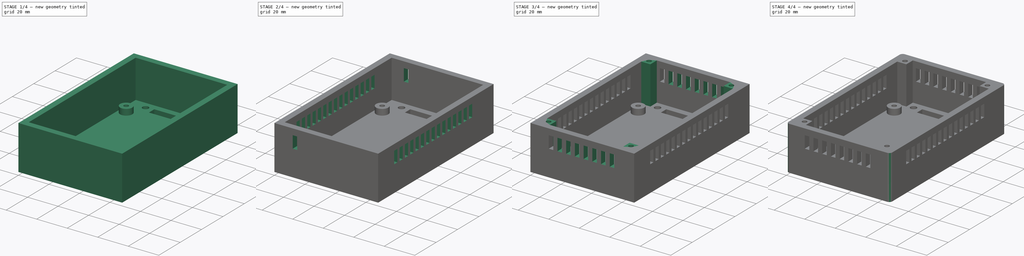
[diagram: build sequence overview — one tinted view per stage of 4, left to right]
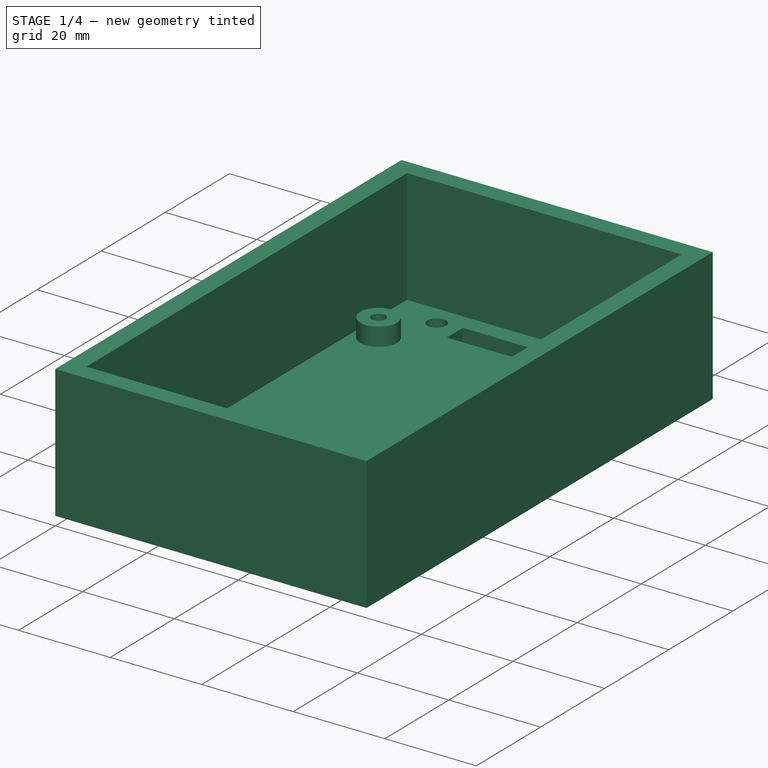
[diagram: stage 1 of 4 — iso view after this stage's code; geometry added in this stage tinted green]
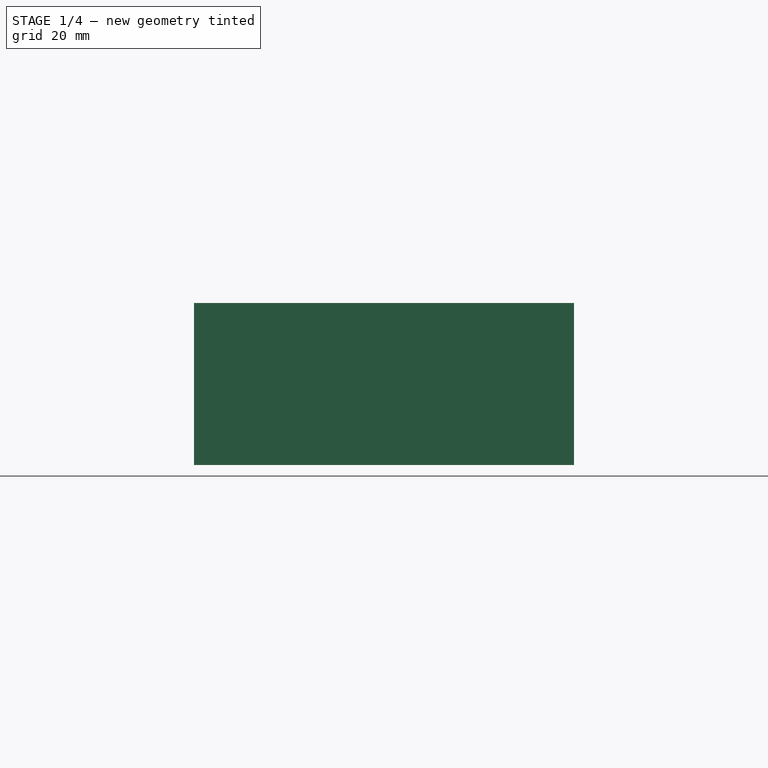
[diagram: stage 1 of 4 — front view after this stage's code; geometry added in this stage tinted green]
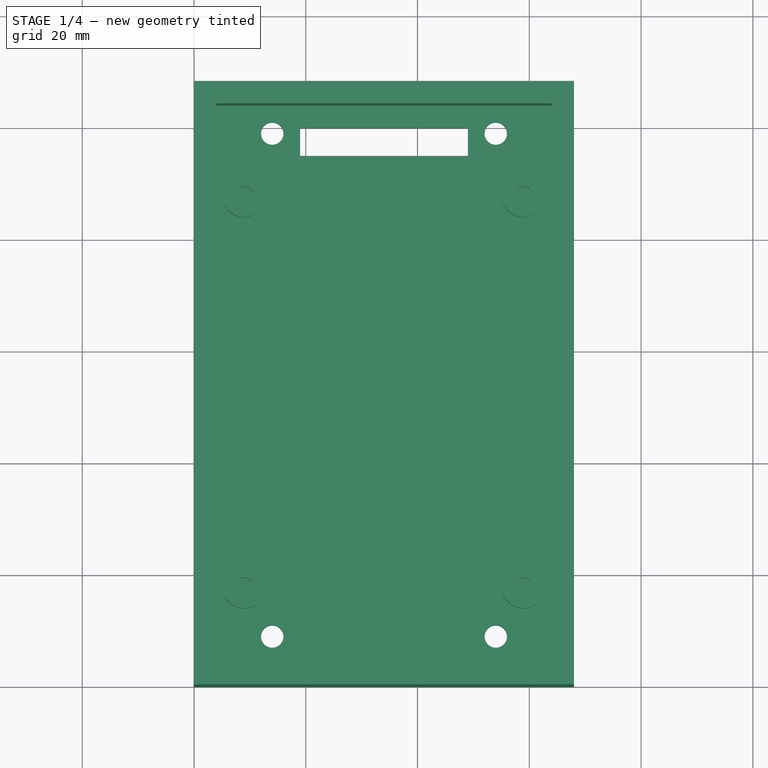
[diagram: stage 1 of 4 — top view after this stage's code; geometry added in this stage tinted green]
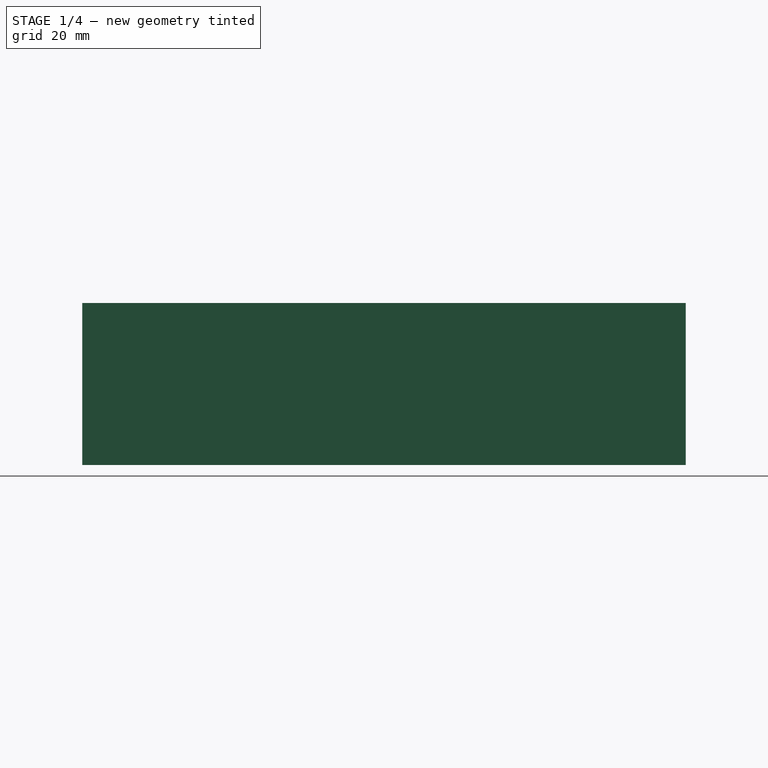
[diagram: stage 1 of 4 — right view after this stage's code; geometry added in this stage tinted green]
FCSTD DOCUMENT  (FreeCAD 0.16R6706 (Git))
Label: iROB-EA_Modulo_Meteorologia
License: All rights reserved
LicenseURL: http://en.wikipedia.org/wiki/All_rights_reserved
objects: Sketcher::SketchObject×8, PartDesign::Pad×4, PartDesign::Pocket×4, PartDesign::Fillet×4, PartDesign::LinearPattern×2
note: 30 computed .brp shape members not serialized (recipe doc carries the construction recipe); baked Part::Feature solids carry a one-line shape summary decoded from their .brp

FEATURE [Sketcher::SketchObject] Sketch  label="Base"
  sketch-geometry (4):
    g0: LineSegment StartX=0 StartY=108 StartZ=0 EndX=68 EndY=108 EndZ=0
    g1: LineSegment StartX=68 StartY=108 StartZ=0 EndX=68 EndY=0 EndZ=0
    g2: LineSegment StartX=68 StartY=0 StartZ=0 EndX=0 EndY=0 EndZ=0
    g3: LineSegment StartX=0 StartY=0 StartZ=0 EndX=0 EndY=108 EndZ=0
  constraints (11):
    c: Coincident(g0,g1)
    c: Coincident(g1,g2)
    c: Coincident(g2,g3)
    c: Coincident(g3,g0)
    c: Horizontal(g0)
    c: Horizontal(g2)
    c: Vertical(g1)
    c: Vertical(g3)
    c: DistanceY(g3,g3) = 108
    c: DistanceX(g2,g2) = 68
    c: Coincident(g2,g-1)
FEATURE [PartDesign::Pad] Pad
  Length = 4
  Length2 = 100
  Sketch = -> Sketch
  Type = 0
FEATURE [Sketcher::SketchObject] Sketch001  label="Borde_Caja"
  Placement = pos=(0,0,4) rot=(0,0,1;0rad)
  Support = -> Pad [Face6]
  sketch-geometry (8):
    g0: LineSegment StartX=4 StartY=104 StartZ=0 EndX=64 EndY=104 EndZ=0
    g1: LineSegment StartX=64 StartY=104 StartZ=0 EndX=64 EndY=4 EndZ=0
    g2: LineSegment StartX=64 StartY=4 StartZ=0 EndX=4 EndY=4 EndZ=0
    g3: LineSegment StartX=4 StartY=4 StartZ=0 EndX=4 EndY=104 EndZ=0
    g4: LineSegment StartX=0 StartY=108 StartZ=0 EndX=68 EndY=108 EndZ=0
    g5: LineSegment StartX=68 StartY=108 StartZ=0 EndX=68 EndY=0 EndZ=0
    g6: LineSegment StartX=68 StartY=0 StartZ=0 EndX=0 EndY=0 EndZ=0
    g7: LineSegment StartX=0 StartY=0 StartZ=0 EndX=0 EndY=108 EndZ=0
  constraints (23):
    c: Coincident(g0,g1)
    c: Coincident(g1,g2)
    c: Coincident(g2,g3)
    c: Coincident(g3,g0)
    c: Horizontal(g0)
    c: Horizontal(g2)
    c: Vertical(g1)
    c: Vertical(g3)
    c: DistanceX(g2,g2) = 60
    c: Coincident(g4,g5)
    c: Coincident(g5,g6)
    c: Coincident(g6,g7)
    c: Coincident(g7,g4)
    c: Horizontal(g4)
    c: Horizontal(g6)
    c: Vertical(g5)
    c: Vertical(g7)
    c: DistanceX(g6,g6) = 68
    c: DistanceX(g2,g6) = -4
    c: DistanceY(g6,g2) = 4
    c: DistanceY(g3,g3) = 100
    c: DistanceY(g7,g7) = 108
    c: Coincident(g6,g-1)
FEATURE [PartDesign::Pad] Pad001
  Length = 25
  Length2 = 100
  Sketch = -> Sketch001
  Type = 0
FEATURE [Sketcher::SketchObject] Sketch002  label="Ranura_Cable_Tornillos"
  Placement = pos=(0,0,4) rot=(0,0,1;0rad)
  Support = -> Pad001 [Face6]
  sketch-geometry (8):
    g0: LineSegment StartX=19 StartY=100 StartZ=0 EndX=49 EndY=100 EndZ=0
    g1: LineSegment StartX=49 StartY=100 StartZ=0 EndX=49 EndY=95 EndZ=0
    g2: LineSegment StartX=49 StartY=95 StartZ=0 EndX=19 EndY=95 EndZ=0
    g3: LineSegment StartX=19 StartY=95 StartZ=0 EndX=19 EndY=100 EndZ=0
    g4: Circle CenterX=14 CenterY=9 CenterZ=0 NormalX=0 NormalY=0 NormalZ=1 Radius=2
    g5: Circle CenterX=54 CenterY=9 CenterZ=0 NormalX=0 NormalY=0 NormalZ=1 Radius=2
    g6: Circle CenterX=54 CenterY=99 CenterZ=0 NormalX=0 NormalY=0 NormalZ=1 Radius=2
    g7: Circle CenterX=14 CenterY=99 CenterZ=0 NormalX=0 NormalY=0 NormalZ=1 Radius=2
  constraints (24):
    c: Coincident(g0,g1)
    c: Coincident(g1,g2)
    c: Coincident(g2,g3)
    c: Coincident(g3,g0)
    c: Horizontal(g0)
    c: Horizontal(g2)
    c: Vertical(g1)
    c: Vertical(g3)
    c: DistanceX(g0,g0) = 30
    c: DistanceY(g1,g1) = 5
    c: DistanceX(g2,g-1) = -19
    c: DistanceY(g-1,g2) = 95
    c: Radius(g4) = 2
    c: Radius(g5) = 2
    c: DistanceY(g4,g5) = 0
    c: DistanceX(g4,g5) = 40
    c: DistanceX(g4,g-1) = -14
    c: DistanceY(g-1,g4) = 9
    c: Radius(g6) = 2
    c: Radius(g7) = 2
    c: DistanceY(g6,g7) = 0
    c: DistanceX(g7,g6) = 40
    c: DistanceY(g5,g6) = 90
    c: DistanceX(g5,g6) = 0
FEATURE [PartDesign::Pocket] Pocket
  Length = 4
  Sketch = -> Sketch002
  Type = 0
FEATURE [Sketcher::SketchObject] Sketch003  label="Soportes_Circuito"
  Placement = pos=(0,0,4) rot=(0,0,1;0rad)
  Support = -> Pocket [Face11]
  sketch-geometry (8):
    g0: Circle CenterX=9 CenterY=88 CenterZ=0 NormalX=0 NormalY=0 NormalZ=1 Radius=1.5
    g1: Circle CenterX=9 CenterY=88 CenterZ=0 NormalX=0 NormalY=0 NormalZ=1 Radius=4
    g2: Circle CenterX=59 CenterY=88 CenterZ=0 NormalX=0 NormalY=0 NormalZ=1 Radius=1.5
    g3: Circle CenterX=59 CenterY=88 CenterZ=0 NormalX=0 NormalY=0 NormalZ=1 Radius=4
    g4: Circle CenterX=59 CenterY=18 CenterZ=0 NormalX=0 NormalY=0 NormalZ=1 Radius=1.5
    g5: Circle CenterX=59 CenterY=18 CenterZ=0 NormalX=0 NormalY=0 NormalZ=1 Radius=4
    g6: Circle CenterX=9 CenterY=18 CenterZ=0 NormalX=0 NormalY=0 NormalZ=1 Radius=1.5
    g7: Circle CenterX=9 CenterY=18 CenterZ=0 NormalX=0 NormalY=0 NormalZ=1 Radius=4
  constraints (20):
    c: Radius(g0) = 1.5
    c: Radius(g1) = 4
    c: Coincident(g0,g1)
    c: Radius(g2) = 1.5
    c: Radius(g3) = 4
    c: Coincident(g2,g3)
    c: DistanceY(g2,g0) = 0
    c: DistanceX(g0,g2) = 50
    c: Radius(g4) = 1.5
    c: Radius(g5) = 4
    c: Coincident(g4,g5)
    c: Radius(g6) = 1.5
    c: Radius(g7) = 4
    c: Coincident(g7,g6)
    c: DistanceY(g6,g4) = 0
    c: DistanceX(g0,g6) = 0
    c: DistanceX(g4,g2) = 0
    c: DistanceY(g6,g0) = 70
    c: DistanceX(g6,g-1) = -9
    c: DistanceY(g-1,g6) = 18
FEATURE [PartDesign::Pad] Pad002
  Length = 4
  Length2 = 100
  Sketch = -> Sketch003
  Type = 0
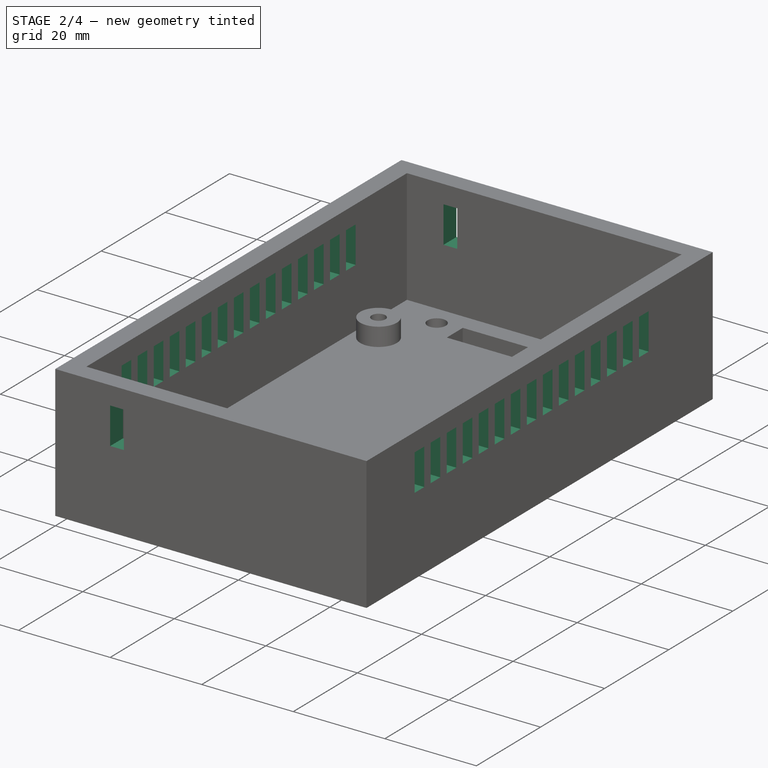
[diagram: stage 2 of 4 — iso view after this stage's code; geometry added in this stage tinted green]
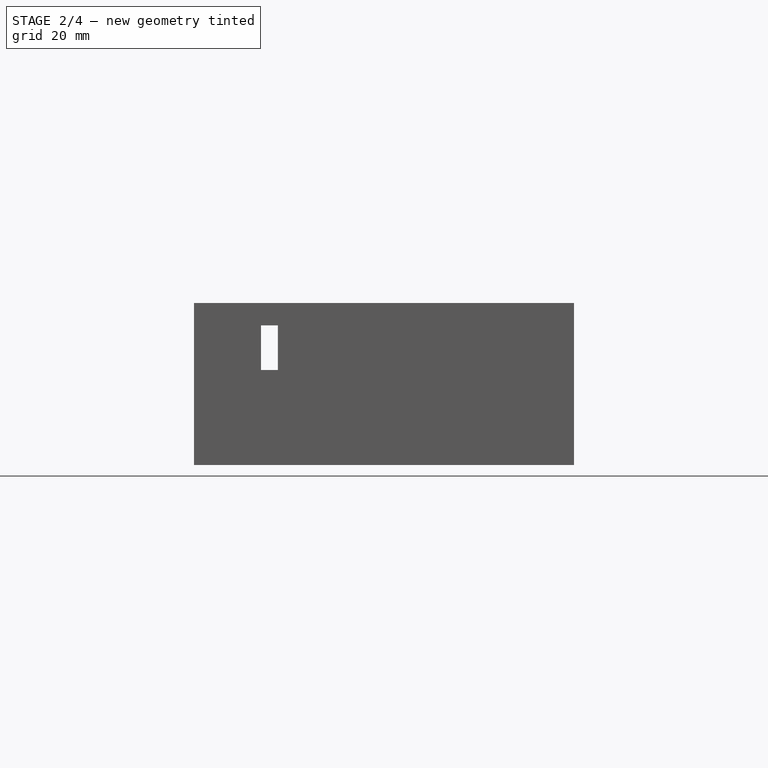
[diagram: stage 2 of 4 — front view after this stage's code; geometry added in this stage tinted green]
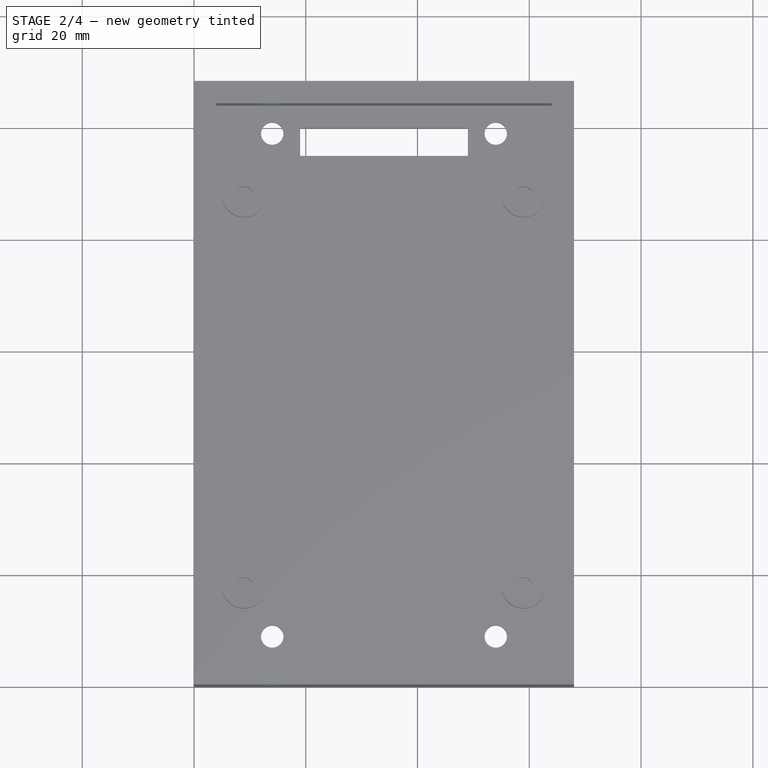
[diagram: stage 2 of 4 — top view after this stage's code; geometry added in this stage tinted green]
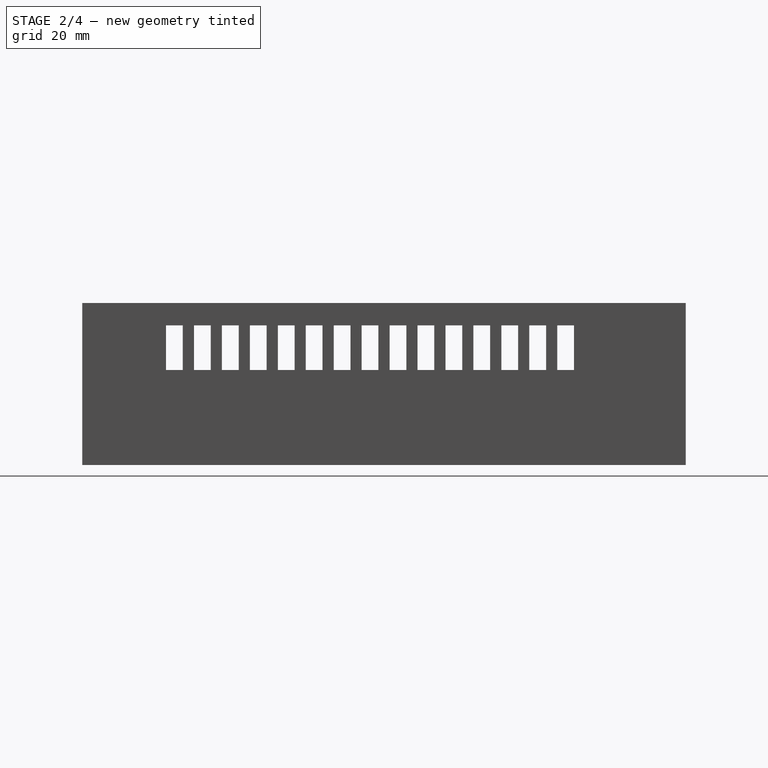
[diagram: stage 2 of 4 — right view after this stage's code; geometry added in this stage tinted green]
FEATURE [Sketcher::SketchObject] Sketch004  label="Ranura_A_Modelo"
  Placement = pos=(68,0,0) rot=(0.57735,0.57735,0.57735;2.0944rad)
  Support = -> Pad002 [Face3]
  sketch-geometry (4):
    g0: LineSegment StartX=15 StartY=25 StartZ=0 EndX=18 EndY=25 EndZ=0
    g1: LineSegment StartX=18 StartY=25 StartZ=0 EndX=18 EndY=17 EndZ=0
    g2: LineSegment StartX=18 StartY=17 StartZ=0 EndX=15 EndY=17 EndZ=0
    g3: LineSegment StartX=15 StartY=17 StartZ=0 EndX=15 EndY=25 EndZ=0
  constraints (12):
    c: Coincident(g0,g1)
    c: Coincident(g1,g2)
    c: Coincident(g2,g3)
    c: Coincident(g3,g0)
    c: Horizontal(g0)
    c: Horizontal(g2)
    c: Vertical(g1)
    c: Vertical(g3)
    c: DistanceY(g1,g1) = 8
    c: DistanceX(g0,g0) = 3
    c: DistanceY(g-1,g2) = 17
    c: DistanceX(g2,g-1) = -15
FEATURE [PartDesign::Pocket] Pocket001
  Length = 70
  Sketch = -> Sketch004
  Type = 0
FEATURE [PartDesign::LinearPattern] LinearPattern  label="Ranurado_A"
  Direction = -> Sketch004 [H_Axis]
  Length = 70
  Occurrences = 15
  Originals = -> [Pocket001]
FEATURE [Sketcher::SketchObject] Sketch005  label="Ranura_B_Modelo"
  Placement = pos=(0,0,0) rot=(1,0,0;1.5708rad)
  Support = -> LinearPattern [Face4]
  sketch-geometry (4):
    g0: LineSegment StartX=12 StartY=25 StartZ=0 EndX=15 EndY=25 EndZ=0
    g1: LineSegment StartX=15 StartY=25 StartZ=0 EndX=15 EndY=17 EndZ=0
    g2: LineSegment StartX=15 StartY=17 StartZ=0 EndX=12 EndY=17 EndZ=0
    g3: LineSegment StartX=12 StartY=17 StartZ=0 EndX=12 EndY=25 EndZ=0
  constraints (12):
    c: Coincident(g0,g1)
    c: Coincident(g1,g2)
    c: Coincident(g2,g3)
    c: Coincident(g3,g0)
    c: Horizontal(g0)
    c: Horizontal(g2)
    c: Vertical(g1)
    c: Vertical(g3)
    c: DistanceX(g0,g0) = 3
    c: DistanceY(g3,g3) = 8
    c: DistanceX(g2,g-1) = -12
    c: DistanceY(g-1,g2) = 17
FEATURE [PartDesign::Pocket] Pocket002
  Length = 110
  Sketch = -> Sketch005
  Type = 0
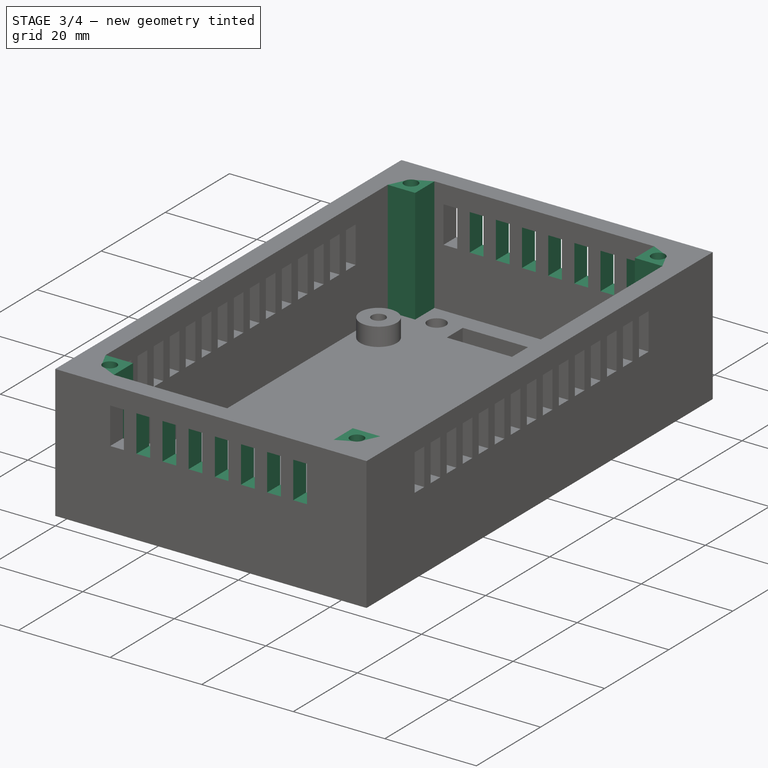
[diagram: stage 3 of 4 — iso view after this stage's code; geometry added in this stage tinted green]
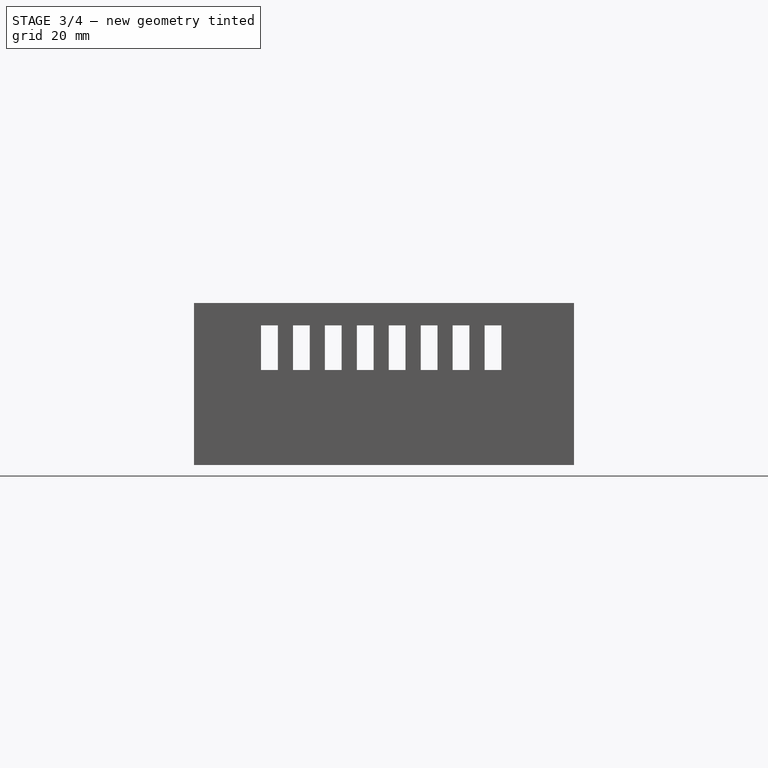
[diagram: stage 3 of 4 — front view after this stage's code; geometry added in this stage tinted green]
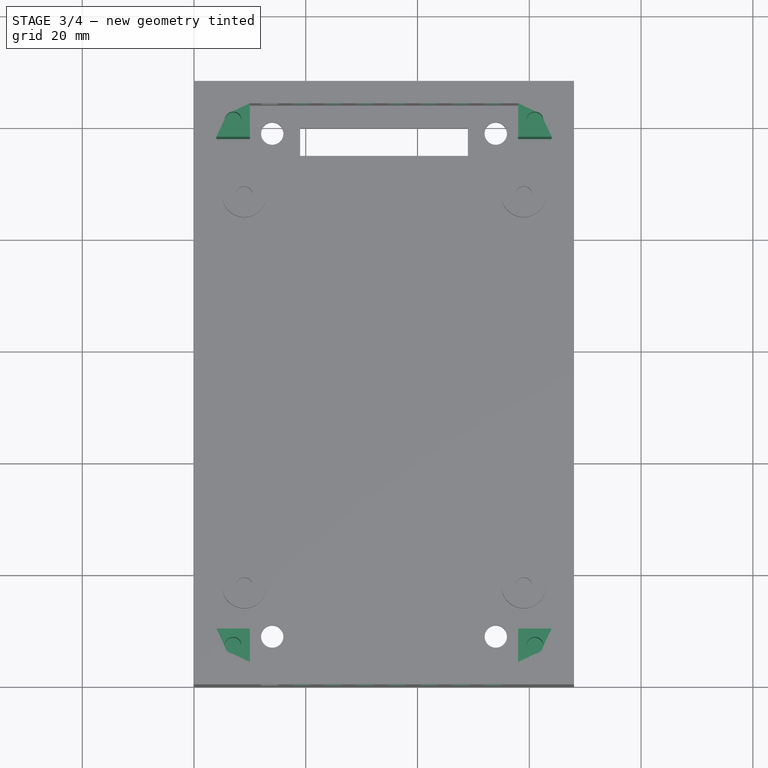
[diagram: stage 3 of 4 — top view after this stage's code; geometry added in this stage tinted green]
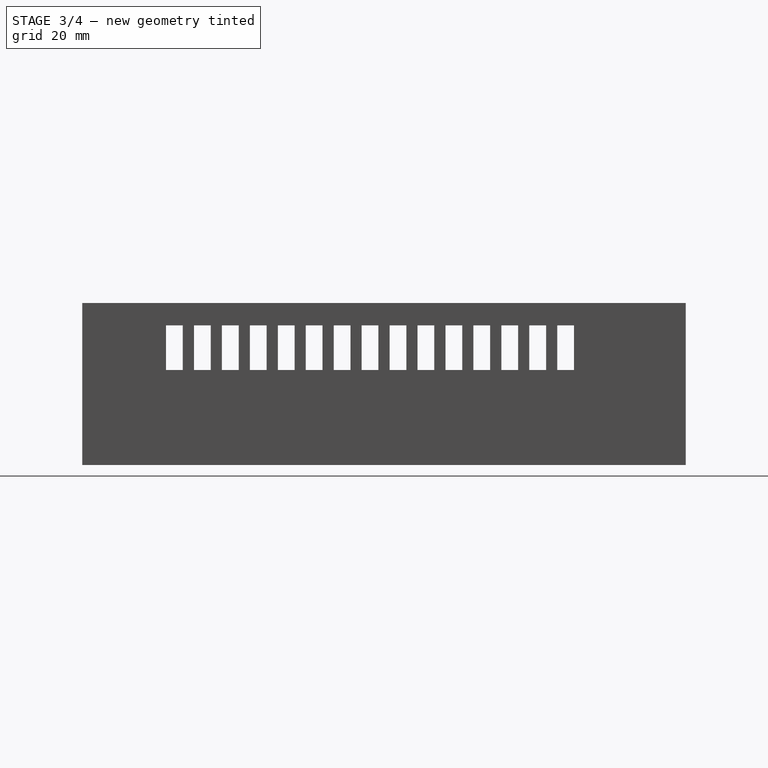
[diagram: stage 3 of 4 — right view after this stage's code; geometry added in this stage tinted green]
FEATURE [PartDesign::LinearPattern] LinearPattern001  label="Ranurado_B"
  Direction = -> Sketch005 [H_Axis]
  Length = 40
  Occurrences = 8
  Originals = -> [Pocket002]
FEATURE [Sketcher::SketchObject] Sketch006  label="Tornillos_Tapa_Cuadrado"
  Placement = pos=(0,0,4) rot=(0,0,1;0rad)
  Support = -> LinearPattern001 [Face195]
  sketch-geometry (16):
    g0: LineSegment StartX=4 StartY=10 StartZ=0 EndX=10 EndY=10 EndZ=0
    g1: LineSegment StartX=10 StartY=10 StartZ=0 EndX=10 EndY=4 EndZ=0
    g2: LineSegment StartX=10 StartY=4 StartZ=0 EndX=4 EndY=4 EndZ=0
    g3: LineSegment StartX=4 StartY=4 StartZ=0 EndX=4 EndY=10 EndZ=0
    g4: LineSegment StartX=58 StartY=10 StartZ=0 EndX=64 EndY=10 EndZ=0
    g5: LineSegment StartX=64 StartY=10 StartZ=0 EndX=64 EndY=4 EndZ=0
    g6: LineSegment StartX=64 StartY=4 StartZ=0 EndX=58 EndY=4 EndZ=0
    g7: LineSegment StartX=58 StartY=4 StartZ=0 EndX=58 EndY=10 EndZ=0
    g8: LineSegment StartX=4 StartY=104 StartZ=0 EndX=10 EndY=104 EndZ=0
    g9: LineSegment StartX=10 StartY=104 StartZ=0 EndX=10 EndY=98 EndZ=0
    g10: LineSegment StartX=10 StartY=98 StartZ=0 EndX=4 EndY=98 EndZ=0
    g11: LineSegment StartX=4 StartY=98 StartZ=0 EndX=4 EndY=104 EndZ=0
    g12: LineSegment StartX=58 StartY=104 StartZ=0 EndX=64 EndY=104 EndZ=0
    g13: LineSegment StartX=64 StartY=104 StartZ=0 EndX=64 EndY=98 EndZ=0
    g14: LineSegment StartX=64 StartY=98 StartZ=0 EndX=58 EndY=98 EndZ=0
    g15: LineSegment StartX=58 StartY=98 StartZ=0 EndX=58 EndY=104 EndZ=0
  constraints (48):
    c: Coincident(g0,g1)
    c: Coincident(g1,g2)
    c: Coincident(g2,g3)
    c: Coincident(g3,g0)
    c: Horizontal(g0)
    c: Horizontal(g2)
    c: Vertical(g1)
    c: Vertical(g3)
    c: DistanceX(g0,g0) = 6
    c: DistanceY(g1,g1) = 6
    c: DistanceY(g-1,g2) = 4
    c: DistanceX(g2,g-1) = -4
    c: Coincident(g4,g5)
    c: Coincident(g5,g6)
    c: Coincident(g6,g7)
    c: Coincident(g7,g4)
    c: Horizontal(g4)
    c: Horizontal(g6)
    c: Vertical(g5)
    c: Vertical(g7)
    c: DistanceX(g4,g4) = 6
    c: DistanceY(g7,g7) = 6
    c: DistanceY(g-1,g6) = 4
    c: DistanceX(g6,g-1) = -58
    c: Coincident(g8,g9)
    c: Coincident(g9,g10)
    c: Coincident(g10,g11)
    c: Coincident(g11,g8)
    c: Horizontal(g8)
    c: Horizontal(g10)
    c: Vertical(g9)
    c: Vertical(g11)
    c: DistanceX(g8,g8) = 6
    c: DistanceY(g9,g9) = 6
    c: DistanceX(g10,g-1) = -4
    c: DistanceY(g-1,g10) = 98
    c: Coincident(g12,g13)
    c: Coincident(g13,g14)
    c: Coincident(g14,g15)
    c: Coincident(g15,g12)
    c: Horizontal(g12)
    c: Horizontal(g14)
    c: Vertical(g13)
    c: Vertical(g15)
    c: DistanceX(g12,g12) = 6
    c: DistanceY(g15,g15) = 6
    c: DistanceX(g14,g-1) = -58
    c: DistanceY(g14,g9) = 0
FEATURE [PartDesign::Pad] Pad003
  Length = 25
  Length2 = 100
  Sketch = -> Sketch006
  Type = 0
FEATURE [Sketcher::SketchObject] Sketch007  label="Tornillos_Tapa_Hueco"
  Placement = pos=(0,0,29) rot=(0,0,1;0rad)
  Support = -> Pad003 [Face227]
  sketch-geometry (4):
    g0: Circle CenterX=7 CenterY=7 CenterZ=0 NormalX=0 NormalY=0 NormalZ=1 Radius=1.5
    g1: Circle CenterX=61 CenterY=7 CenterZ=0 NormalX=0 NormalY=0 NormalZ=1 Radius=1.5
    g2: Circle CenterX=7 CenterY=101 CenterZ=0 NormalX=0 NormalY=0 NormalZ=1 Radius=1.5
    g3: Circle CenterX=61 CenterY=101 CenterZ=0 NormalX=0 NormalY=0 NormalZ=1 Radius=1.5
  constraints (12):
    c: Radius(g0) = 1.5
    c: DistanceX(g0,g-1) = -7
    c: DistanceY(g-1,g0) = 7
    c: Radius(g1) = 1.5
    c: DistanceY(g0,g1) = 0
    c: DistanceX(g1,g0) = -54
    c: Radius(g2) = 1.5
    c: DistanceX(g2,g0) = 0
    c: DistanceY(g0,g2) = 94
    c: Radius(g3) = 1.5
    c: DistanceY(g3,g2) = 0
    c: DistanceX(g3,g2) = -54
FEATURE [PartDesign::Pocket] Pocket003
  Length = 10
  Sketch = -> Sketch007
  Type = 0
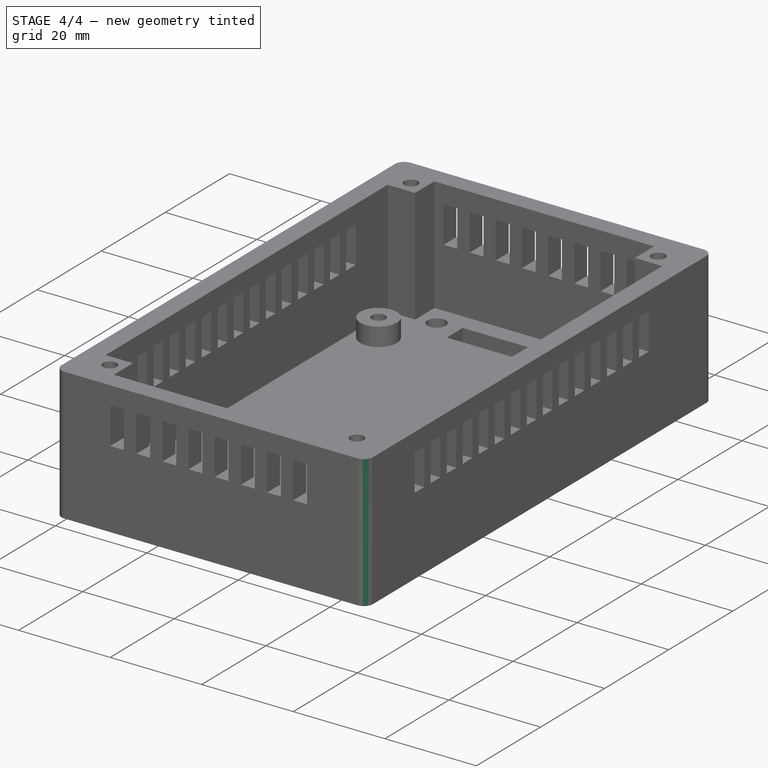
[diagram: stage 4 of 4 — iso view after this stage's code; geometry added in this stage tinted green]
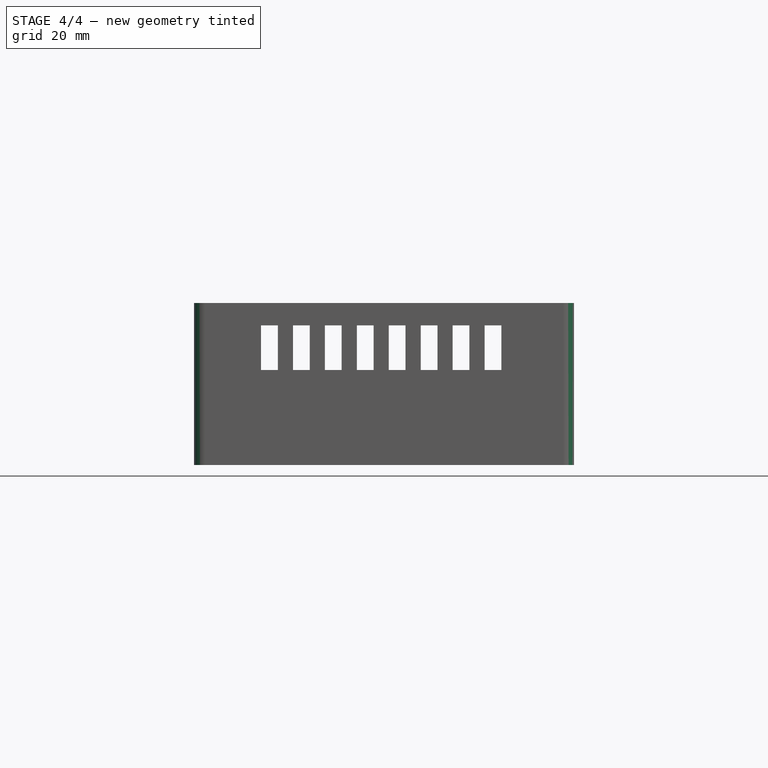
[diagram: stage 4 of 4 — front view after this stage's code; geometry added in this stage tinted green]
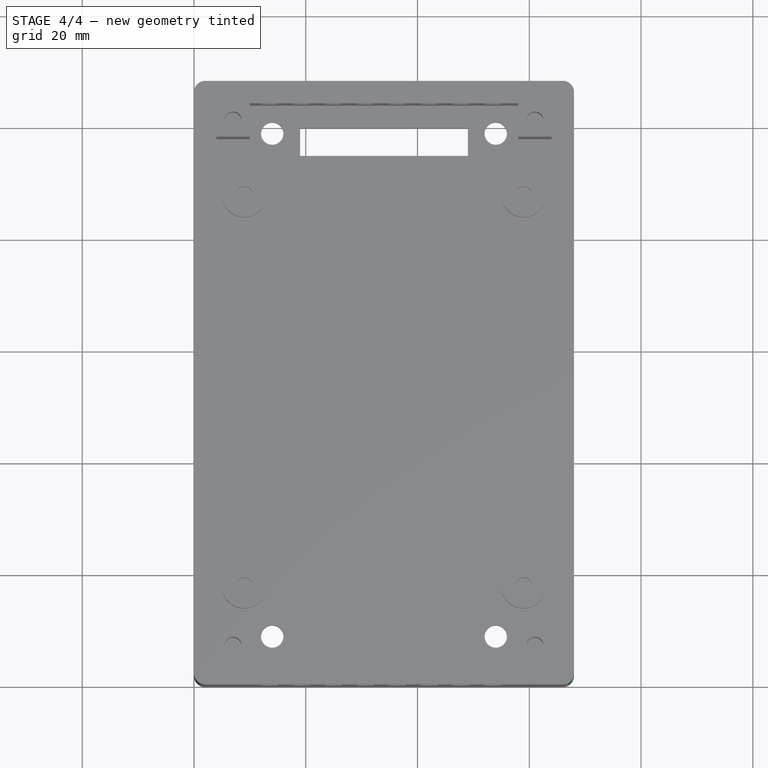
[diagram: stage 4 of 4 — top view after this stage's code; geometry added in this stage tinted green]
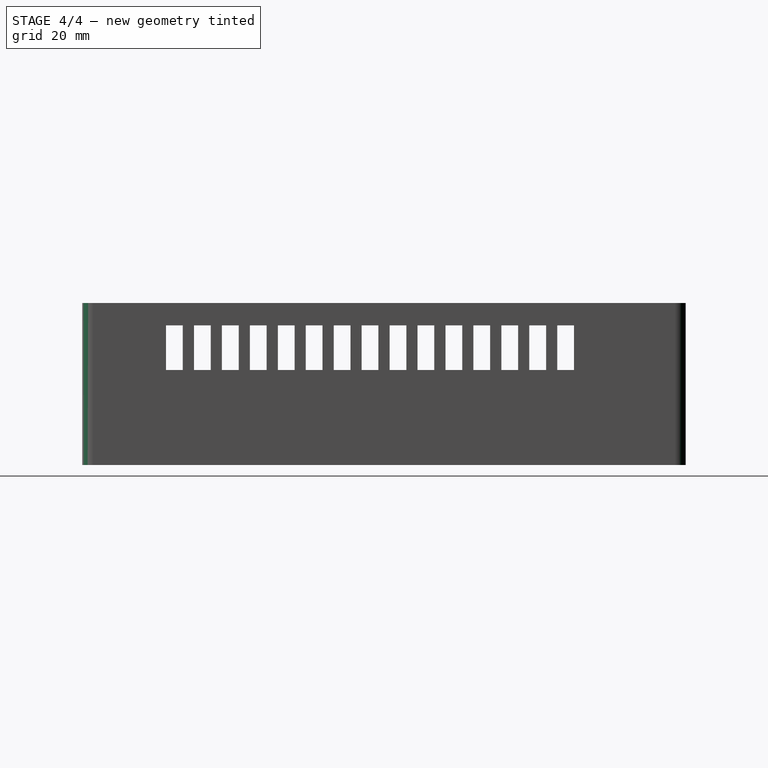
[diagram: stage 4 of 4 — right view after this stage's code; geometry added in this stage tinted green]
FEATURE [PartDesign::Fillet] Fillet  label="Borde_0"
  Base = -> Pocket003 [Edge128]
  Radius = 2
FEATURE [PartDesign::Fillet] Fillet001  label="Borde_1"
  Base = -> Fillet [Edge113]
  Radius = 2
FEATURE [PartDesign::Fillet] Fillet002  label="Borde_2"
  Base = -> Fillet001 [Edge116]
  Radius = 2
FEATURE [PartDesign::Fillet] Fillet003  label="Borde_3"
  Base = -> Fillet002 [Edge83]
  Radius = 2
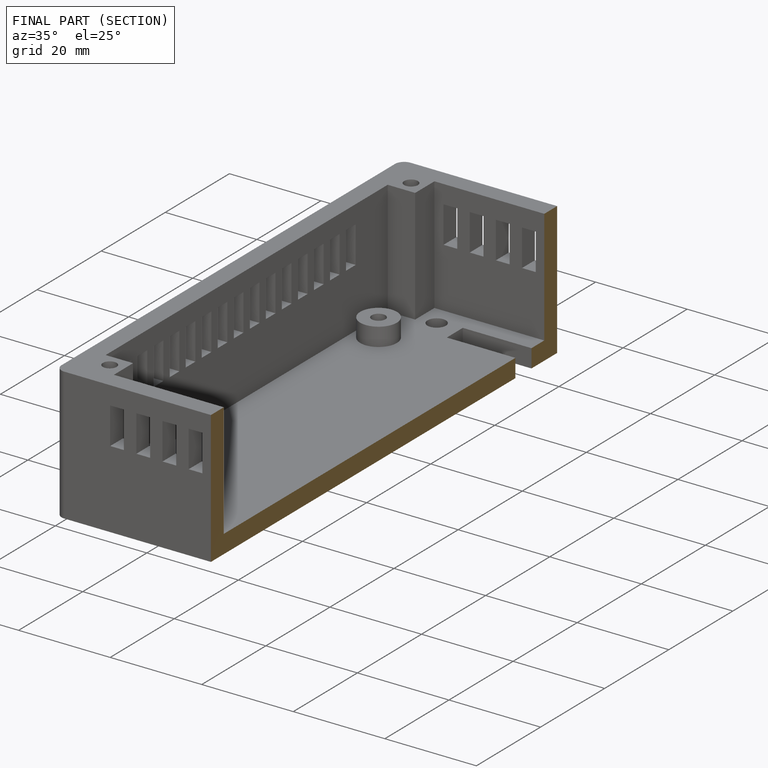
[diagram: finished part — half-section view (interior)]
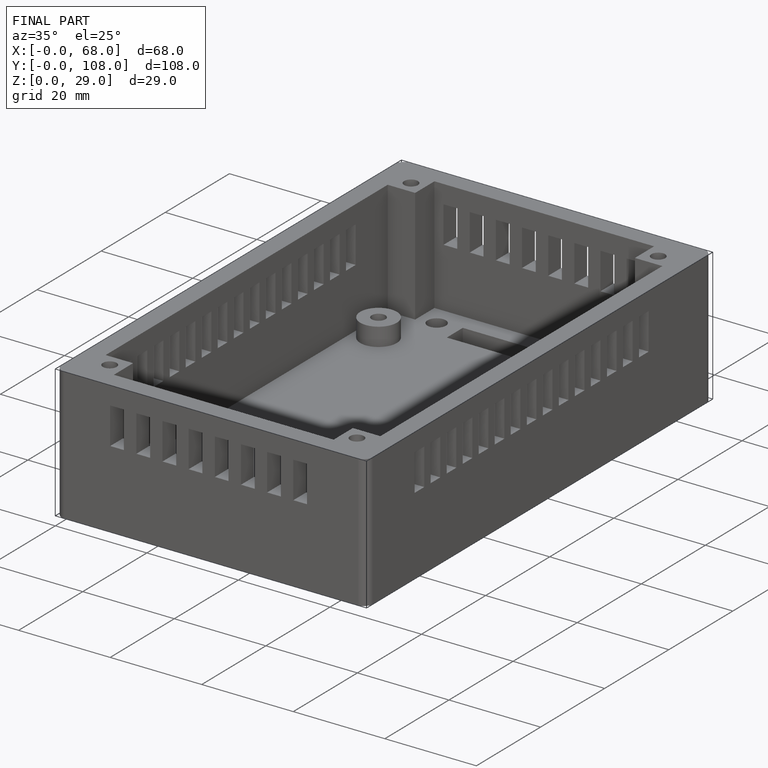
[diagram: finished part — iso view with bounding-box wireframe]
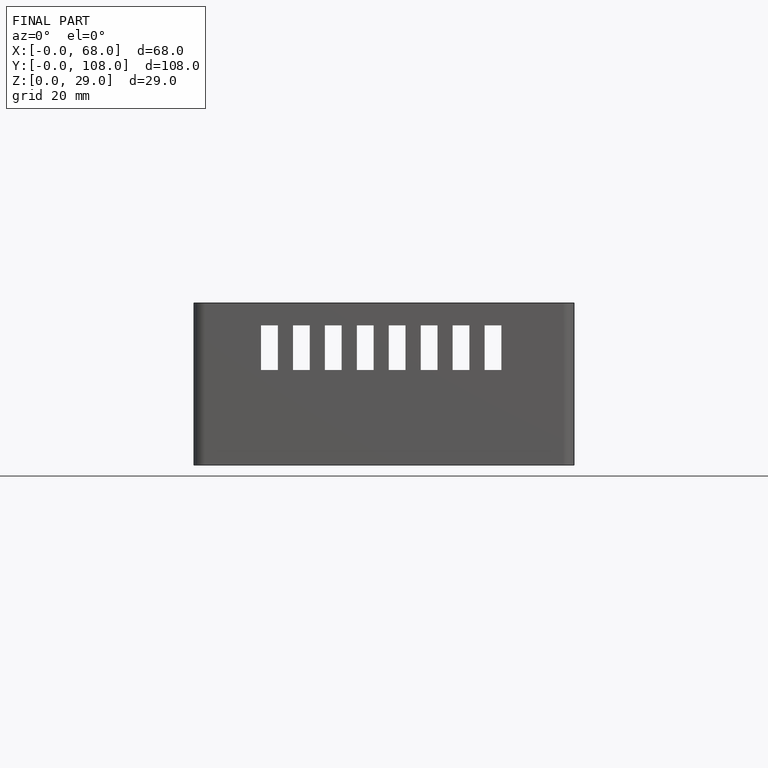
[diagram: finished part — front view with bounding-box wireframe]
